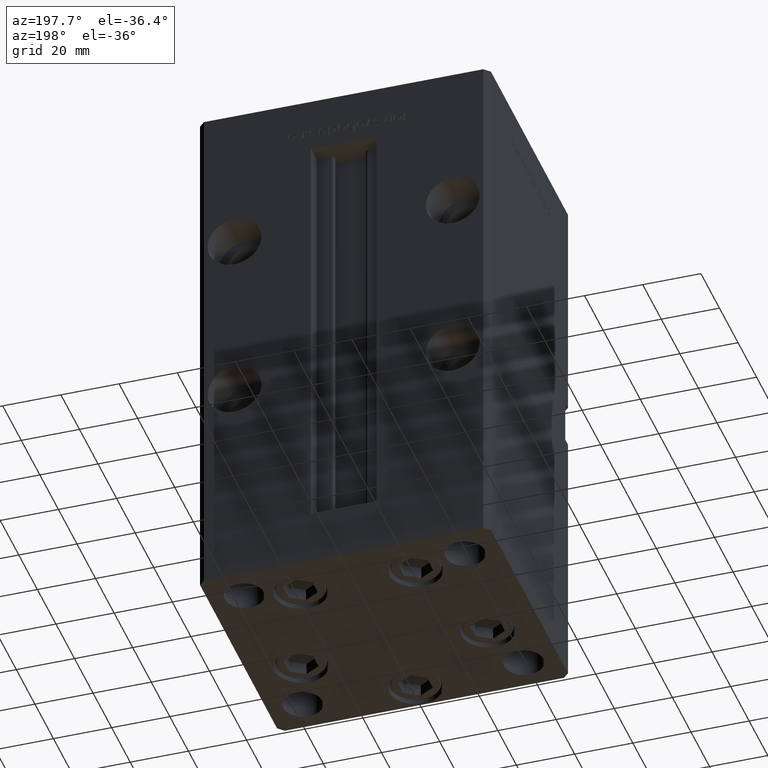
[diagram: clean part render]
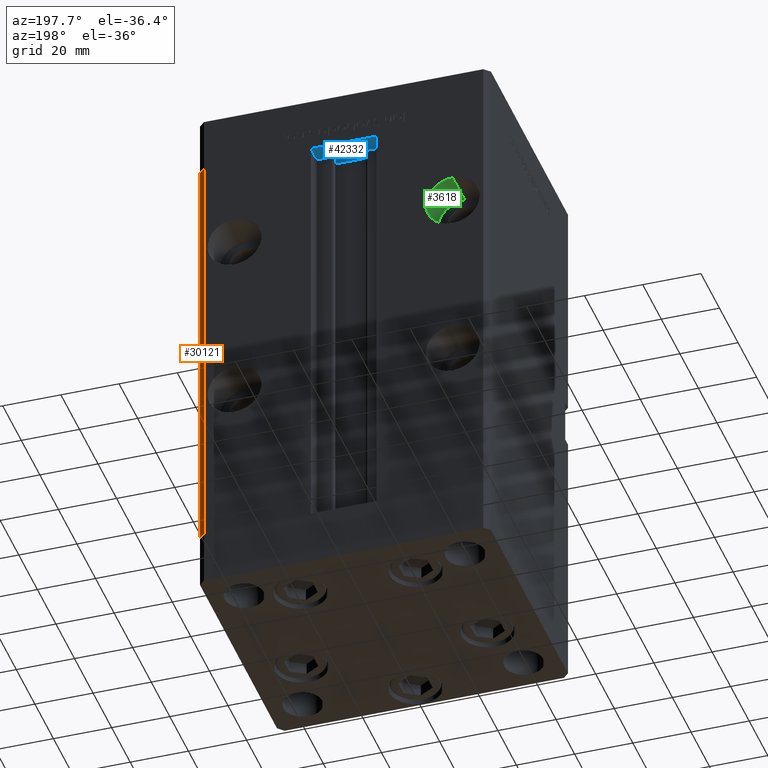
[diagram: same view with three faces highlighted in distinct colors, each labeled with its STEP entity id]
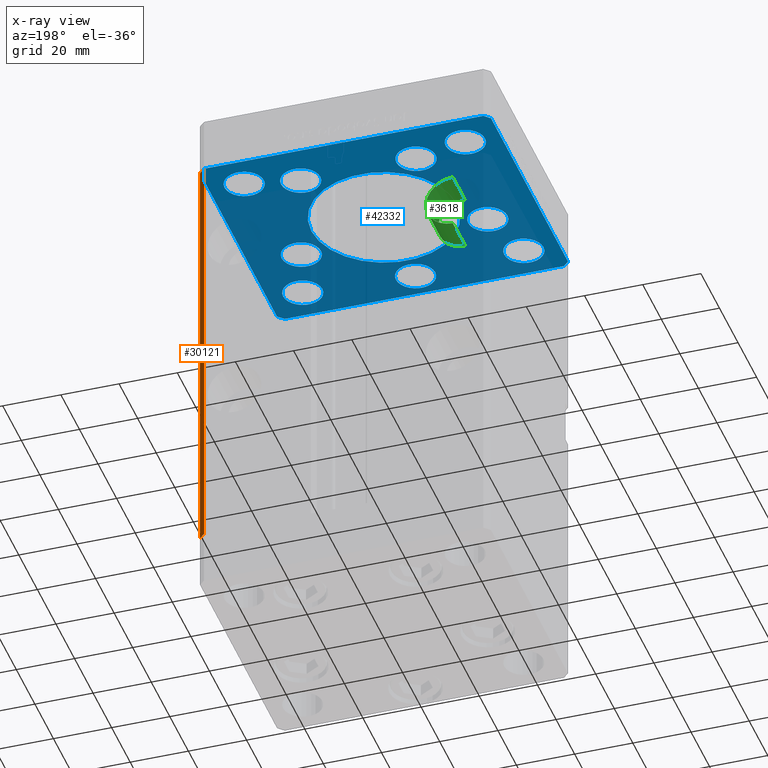
[diagram: x-ray of the same camera — body ghosted, the three highlighted faces saturated]
A machine part, auxiliary view with three faces highlighted in distinct colors.
The next image is the same camera in x-ray (body ghosted, the three faces saturated) — at least one of them is partly hidden behind the body in this view.
Their STEP definitions:

[orange] entity #30121 — the highlighted planar face has unit normal (0.7071, 0.7071, 0).
#4282 = FACE_OUTER_BOUND ( 'NONE', #13705, .T. ) ;
#5411 = ORIENTED_EDGE ( 'NONE', *, *, #23778, .F. ) ;
#5953 = CARTESIAN_POINT ( 'NONE',  ( 50.00000000000001421, 41.49999999999999289, 0.000000000000000000 ) ) ;
#8995 = ORIENTED_EDGE ( 'NONE', *, *, #16210, .T. ) ;
#9285 = VECTOR ( 'NONE', #27767, 1000.000000000000000 ) ;
#10758 = CARTESIAN_POINT ( 'NONE',  ( 48.00000000000000711, 43.50000000000000000, 148.5000000000000000 ) ) ;
#10785 = ORIENTED_EDGE ( 'NONE', *, *, #25831, .T. ) ;
#11395 = LINE ( 'NONE', #18913, #9285 ) ;
#11842 = VECTOR ( 'NONE', #37168, 1000.000000000000000 ) ;
#13705 = EDGE_LOOP ( 'NONE', ( #5411, #19405, #8995, #10785 ) ) ;
#15940 = VERTEX_POINT ( 'NONE', #47399 ) ;
#16210 = EDGE_CURVE ( 'NONE', #15940, #17221, #19061, .T. ) ;
#17221 = VERTEX_POINT ( 'NONE', #23686 ) ;
#18913 = CARTESIAN_POINT ( 'NONE',  ( 48.00000000000000711, 43.50000000000000000, 148.5000000000000000 ) ) ;
#19061 = LINE ( 'NONE', #10758, #28802 ) ;
#19405 = ORIENTED_EDGE ( 'NONE', *, *, #31871, .F. ) ;
#21213 = VECTOR ( 'NONE', #42883, 1000.000000000000000 ) ;
#21236 = AXIS2_PLACEMENT_3D ( 'NONE', #29502, #45899, #32488 ) ;
#21462 = VERTEX_POINT ( 'NONE', #27024 ) ;
#23686 = CARTESIAN_POINT ( 'NONE',  ( 50.00000000000001421, 41.49999999999999289, 148.5000000000000000 ) ) ;
#23778 = EDGE_CURVE ( 'NONE', #21462, #48512, #46908, .T. ) ;
#25831 = EDGE_CURVE ( 'NONE', #17221, #48512, #33925, .T. ) ;
#26856 = DIRECTION ( 'NONE',  ( 0.7071067811865487940, -0.7071067811865463515, 0.000000000000000000 ) ) ;
#27024 = CARTESIAN_POINT ( 'NONE',  ( 48.00000000000000711, 43.50000000000000000, 0.000000000000000000 ) ) ;
#27767 = DIRECTION ( 'NONE',  ( -0.000000000000000000, -0.000000000000000000, -1.000000000000000000 ) ) ;
#28802 = VECTOR ( 'NONE', #26856, 1000.000000000000000 ) ;
#29502 = CARTESIAN_POINT ( 'NONE',  ( 48.00000000000000711, 43.50000000000000000, 148.5000000000000000 ) ) ;
#30121 = ADVANCED_FACE ( 'NONE', ( #4282 ), #45124, .T. ) ;
#31871 = EDGE_CURVE ( 'NONE', #15940, #21462, #11395, .T. ) ;
#32488 = DIRECTION ( 'NONE',  ( -0.7071067811865487940, 0.7071067811865463515, 0.000000000000000000 ) ) ;
#33925 = LINE ( 'NONE', #45760, #11842 ) ;
#37168 = DIRECTION ( 'NONE',  ( -0.000000000000000000, -0.000000000000000000, -1.000000000000000000 ) ) ;
#41782 = CARTESIAN_POINT ( 'NONE',  ( 48.00000000000000711, 43.50000000000000000, 0.000000000000000000 ) ) ;
#42883 = DIRECTION ( 'NONE',  ( 0.7071067811865487940, -0.7071067811865463515, 0.000000000000000000 ) ) ;
#45124 = PLANE ( 'NONE',  #21236 ) ;
#45760 = CARTESIAN_POINT ( 'NONE',  ( 50.00000000000001421, 41.49999999999999289, 148.5000000000000000 ) ) ;
#45899 = DIRECTION ( 'NONE',  ( 0.7071067811865463515, 0.7071067811865487940, -0.000000000000000000 ) ) ;
#46908 = LINE ( 'NONE', #41782, #21213 ) ;
#47399 = CARTESIAN_POINT ( 'NONE',  ( 48.00000000000000711, 43.50000000000000000, 148.5000000000000000 ) ) ;
#48512 = VERTEX_POINT ( 'NONE', #5953 ) ;

[blue] entity #42332 — the highlighted planar face has unit normal (0, 0, 1).
#237 = CARTESIAN_POINT ( 'NONE',  ( -25.30550741379015989, -11.33333333333332860, -19.00000000000000000 ) ) ;
#470 = AXIS2_PLACEMENT_3D ( 'NONE', #50813, #38156, #45689 ) ;
#966 = CARTESIAN_POINT ( 'NONE',  ( -48.00000000000000000, 43.49999999999997158, -19.00000000000000000 ) ) ;
#1085 = VECTOR ( 'NONE', #33731, 1000.000000000000000 ) ;
#1143 = DIRECTION ( 'NONE',  ( 1.000000000000000000, 0.000000000000000000, 0.000000000000000000 ) ) ;
#1145 = AXIS2_PLACEMENT_3D ( 'NONE', #21265, #22876, #18050 ) ;
#1189 = CARTESIAN_POINT ( 'NONE',  ( -26.57068048781375325, 27.62499999999998934, -19.00000000000000000 ) ) ;
#1356 = AXIS2_PLACEMENT_3D ( 'NONE', #24107, #52359, #8265 ) ;
#1708 = EDGE_CURVE ( 'NONE', #38481, #48657, #28504, .T. ) ;
#1733 = FACE_BOUND ( 'NONE', #8278, .T. ) ;
#2112 = ORIENTED_EDGE ( 'NONE', *, *, #43628, .F. ) ;
#2161 = DIRECTION ( 'NONE',  ( 8.360113137237620037E-17, -1.000000000000000000, 0.000000000000000000 ) ) ;
#2181 = VECTOR ( 'NONE', #50321, 1000.000000000000000 ) ;
#2265 = VERTEX_POINT ( 'NONE', #12519 ) ;
#2409 = VERTEX_POINT ( 'NONE', #34195 ) ;
#2690 = VERTEX_POINT ( 'NONE', #45439 ) ;
#2809 = AXIS2_PLACEMENT_3D ( 'NONE', #52515, #32079, #23215 ) ;
#2883 = AXIS2_PLACEMENT_3D ( 'NONE', #7216, #11515, #32426 ) ;
#2944 = AXIS2_PLACEMENT_3D ( 'NONE', #19778, #26773, #40203 ) ;
#2963 = VECTOR ( 'NONE', #11852, 1000.000000000000000 ) ;
#2968 = VERTEX_POINT ( 'NONE', #23906 ) ;
#2972 = DIRECTION ( 'NONE',  ( 1.000000000000000000, 0.000000000000000000, 0.000000000000000000 ) ) ;
#3312 = EDGE_CURVE ( 'NONE', #2690, #2968, #29181, .T. ) ;
#3596 = EDGE_CURVE ( 'NONE', #48657, #38481, #5387, .T. ) ;
#3813 = DIRECTION ( 'NONE',  ( 1.000000000000000000, 0.000000000000000000, 0.000000000000000000 ) ) ;
#3819 = VECTOR ( 'NONE', #2161, 1000.000000000000000 ) ;
#3895 = CIRCLE ( 'NONE', #470, 6.749999999999999112 ) ;
#4853 = ORIENTED_EDGE ( 'NONE', *, *, #18025, .T. ) ;
#4943 = EDGE_CURVE ( 'NONE', #49835, #7608, #32915, .T. ) ;
#5123 = VERTEX_POINT ( 'NONE', #16243 ) ;
#5213 = CARTESIAN_POINT ( 'NONE',  ( 0.000000000000000000, 0.000000000000000000, -19.00000000000000000 ) ) ;
#5387 = CIRCLE ( 'NONE', #42277, 6.749999999999999112 ) ;
#6868 = VERTEX_POINT ( 'NONE', #9015 ) ;
#6897 = VERTEX_POINT ( 'NONE', #50387 ) ;
#6962 = DIRECTION ( 'NONE',  ( 0.000000000000000000, -0.000000000000000000, -1.000000000000000000 ) ) ;
#7001 = VERTEX_POINT ( 'NONE', #16994 ) ;
#7199 = DIRECTION ( 'NONE',  ( 0.7071067811865474617, 0.7071067811865474617, 0.000000000000000000 ) ) ;
#7216 = CARTESIAN_POINT ( 'NONE',  ( 0.000000000000000000, 0.000000000000000000, -19.00000000000000000 ) ) ;
#7506 = EDGE_CURVE ( 'NONE', #5123, #6897, #43739, .T. ) ;
#7608 = VERTEX_POINT ( 'NONE', #20072 ) ;
#7680 = CIRCLE ( 'NONE', #46275, 6.749999999999999112 ) ;
#8012 = DIRECTION ( 'NONE',  ( 1.000000000000000000, 0.000000000000000000, 0.000000000000000000 ) ) ;
#8265 = DIRECTION ( 'NONE',  ( 1.000000000000000000, 0.000000000000000000, 0.000000000000000000 ) ) ;
#8278 = EDGE_LOOP ( 'NONE', ( #44792, #42666 ) ) ;
#8387 = EDGE_CURVE ( 'NONE', #38022, #14256, #13128, .T. ) ;
#8681 = ORIENTED_EDGE ( 'NONE', *, *, #13102, .F. ) ;
#8787 = CARTESIAN_POINT ( 'NONE',  ( -32.05550741379015989, -11.33333333333332860, -19.00000000000000000 ) ) ;
#8876 = DIRECTION ( 'NONE',  ( 0.000000000000000000, 1.000000000000000000, 0.000000000000000000 ) ) ;
#8891 = VERTEX_POINT ( 'NONE', #46302 ) ;
#9015 = CARTESIAN_POINT ( 'NONE',  ( -44.75000000000000000, 31.50000000000000000, -19.00000000000000000 ) ) ;
#9040 = CARTESIAN_POINT ( 'NONE',  ( 6.749999999999999112, -34.00000000000000000, -19.00000000000000000 ) ) ;
#9399 = EDGE_LOOP ( 'NONE', ( #21973, #38959 ) ) ;
#9801 = FACE_BOUND ( 'NONE', #13570, .T. ) ;
#9884 = ORIENTED_EDGE ( 'NONE', *, *, #10661, .F. ) ;
#10037 = ORIENTED_EDGE ( 'NONE', *, *, #7506, .F. ) ;
#10221 = EDGE_CURVE ( 'NONE', #16527, #5123, #52699, .T. ) ;
#10661 = EDGE_CURVE ( 'NONE', #2265, #28944, #39834, .T. ) ;
#11229 = VECTOR ( 'NONE', #8876, 1000.000000000000000 ) ;
#11279 = CARTESIAN_POINT ( 'NONE',  ( -25.00000000000000000, 3.061616997868383043E-15, -19.00000000000000000 ) ) ;
#11298 = CIRCLE ( 'NONE', #43060, 6.749999999999999112 ) ;
#11497 = CARTESIAN_POINT ( 'NONE',  ( 48.00000000000000711, -43.49999999999992184, -19.00000000000000000 ) ) ;
#11508 = EDGE_CURVE ( 'NONE', #2968, #39848, #47294, .T. ) ;
#11515 = DIRECTION ( 'NONE',  ( 0.000000000000000000, -0.000000000000000000, -1.000000000000000000 ) ) ;
#11532 = CARTESIAN_POINT ( 'NONE',  ( -32.05550741379015989, -11.33333333333332860, -19.00000000000000000 ) ) ;
#11631 = ORIENTED_EDGE ( 'NONE', *, *, #4943, .T. ) ;
#11852 = DIRECTION ( 'NONE',  ( 1.000000000000000000, 1.156482317317871331E-15, 0.000000000000000000 ) ) ;
#12519 = CARTESIAN_POINT ( 'NONE',  ( 13.07068048781375147, 27.62499999999998934, -19.00000000000000000 ) ) ;
#13102 = EDGE_CURVE ( 'NONE', #45633, #2690, #42814, .T. ) ;
#13128 = CIRCLE ( 'NONE', #2883, 25.00000000000000000 ) ;
#13479 = CARTESIAN_POINT ( 'NONE',  ( -31.25000000000000000, 31.50000000000000000, -19.00000000000000000 ) ) ;
#13557 = ORIENTED_EDGE ( 'NONE', *, *, #44082, .F. ) ;
#13570 = EDGE_LOOP ( 'NONE', ( #13557, #9884 ) ) ;
#13771 = DIRECTION ( 'NONE',  ( 0.000000000000000000, 0.000000000000000000, 1.000000000000000000 ) ) ;
#14246 = DIRECTION ( 'NONE',  ( 0.000000000000000000, -0.000000000000000000, -1.000000000000000000 ) ) ;
#14256 = VERTEX_POINT ( 'NONE', #50066 ) ;
#14338 = CIRCLE ( 'NONE', #35757, 6.749999999999999112 ) ;
#14510 = EDGE_CURVE ( 'NONE', #18147, #42248, #3895, .T. ) ;
#14512 = CARTESIAN_POINT ( 'NONE',  ( 19.82068048781374969, 27.62499999999998934, -19.00000000000000000 ) ) ;
#14568 = EDGE_CURVE ( 'NONE', #46292, #8891, #21046, .T. ) ;
#14793 = CIRCLE ( 'NONE', #22486, 6.749999999999999112 ) ;
#14824 = AXIS2_PLACEMENT_3D ( 'NONE', #50314, #13771, #1143 ) ;
#15636 = AXIS2_PLACEMENT_3D ( 'NONE', #5213, #17569, #37974 ) ;
#15791 = EDGE_CURVE ( 'NONE', #41956, #7001, #20235, .T. ) ;
#16243 = CARTESIAN_POINT ( 'NONE',  ( 48.00000000000000711, -43.49999999999992184, -19.00000000000000000 ) ) ;
#16527 = VERTEX_POINT ( 'NONE', #26787 ) ;
#16994 = CARTESIAN_POINT ( 'NONE',  ( 44.75000000000000000, 31.50000000000000000, -19.00000000000000000 ) ) ;
#17295 = DIRECTION ( 'NONE',  ( 0.000000000000000000, -0.000000000000000000, -1.000000000000000000 ) ) ;
#17569 = DIRECTION ( 'NONE',  ( -0.000000000000000000, 0.000000000000000000, 1.000000000000000000 ) ) ;
#17997 = CARTESIAN_POINT ( 'NONE',  ( -50.00000000000000711, 41.49999999999999289, -19.00000000000000000 ) ) ;
#18025 = EDGE_CURVE ( 'NONE', #7001, #41956, #14338, .T. ) ;
#18050 = DIRECTION ( 'NONE',  ( -1.000000000000000000, 0.000000000000000000, 0.000000000000000000 ) ) ;
#18113 = FACE_BOUND ( 'NONE', #31927, .T. ) ;
#18147 = VERTEX_POINT ( 'NONE', #41396 ) ;
#18406 = VERTEX_POINT ( 'NONE', #237 ) ;
#19533 = EDGE_CURVE ( 'NONE', #14256, #38022, #52122, .T. ) ;
#19638 = CARTESIAN_POINT ( 'NONE',  ( -48.00000000000000711, -43.50000000000002842, -19.00000000000000000 ) ) ;
#19649 = ORIENTED_EDGE ( 'NONE', *, *, #33715, .F. ) ;
#19668 = CARTESIAN_POINT ( 'NONE',  ( 38.00000000000000000, 31.50000000000000000, -19.00000000000000000 ) ) ;
#19778 = CARTESIAN_POINT ( 'NONE',  ( -38.00000000000000000, 31.50000000000000000, -19.00000000000000000 ) ) ;
#20072 = CARTESIAN_POINT ( 'NONE',  ( -31.25000000000000711, -31.50000000000000711, -19.00000000000000000 ) ) ;
#20235 = CIRCLE ( 'NONE', #1356, 6.749999999999999112 ) ;
#20258 = ORIENTED_EDGE ( 'NONE', *, *, #47531, .T. ) ;
#20382 = DIRECTION ( 'NONE',  ( 1.000000000000000000, 0.000000000000000000, 0.000000000000000000 ) ) ;
#20607 = DIRECTION ( 'NONE',  ( 0.000000000000000000, -0.000000000000000000, -1.000000000000000000 ) ) ;
#20670 = AXIS2_PLACEMENT_3D ( 'NONE', #11532, #6962, #35425 ) ;
#20682 = CARTESIAN_POINT ( 'NONE',  ( 50.00000000000000000, 41.50000000000000711, -19.00000000000000000 ) ) ;
#20962 = CARTESIAN_POINT ( 'NONE',  ( 50.00000000000000000, -41.49999999999992895, -19.00000000000000000 ) ) ;
#21046 = CIRCLE ( 'NONE', #36493, 6.749999999999999112 ) ;
#21198 = ORIENTED_EDGE ( 'NONE', *, *, #27932, .F. ) ;
#21237 = DIRECTION ( 'NONE',  ( 1.000000000000000000, 0.000000000000000000, 0.000000000000000000 ) ) ;
#21265 = CARTESIAN_POINT ( 'NONE',  ( 38.00000000000000711, -31.50000000000000711, -19.00000000000000000 ) ) ;
#21741 = DIRECTION ( 'NONE',  ( 1.000000000000000000, 0.000000000000000000, 0.000000000000000000 ) ) ;
#21912 = EDGE_CURVE ( 'NONE', #18406, #31400, #7680, .T. ) ;
#21970 = ORIENTED_EDGE ( 'NONE', *, *, #52289, .F. ) ;
#21973 = ORIENTED_EDGE ( 'NONE', *, *, #19533, .F. ) ;
#22220 = VECTOR ( 'NONE', #37054, 999.9999999999998863 ) ;
#22448 = EDGE_LOOP ( 'NONE', ( #44748, #50303 ) ) ;
#22486 = AXIS2_PLACEMENT_3D ( 'NONE', #41285, #20607, #49099 ) ;
#22748 = ORIENTED_EDGE ( 'NONE', *, *, #3312, .F. ) ;
#22876 = DIRECTION ( 'NONE',  ( -0.000000000000000000, -0.000000000000000000, -1.000000000000000000 ) ) ;
#22909 = CIRCLE ( 'NONE', #42681, 6.749999999999999112 ) ;
#22972 = LINE ( 'NONE', #35330, #30625 ) ;
#23215 = DIRECTION ( 'NONE',  ( 1.000000000000000000, 0.000000000000000000, 0.000000000000000000 ) ) ;
#23442 = VERTEX_POINT ( 'NONE', #41441 ) ;
#23447 = CARTESIAN_POINT ( 'NONE',  ( 0.000000000000000000, 0.000000000000000000, -19.00000000000000000 ) ) ;
#23903 = ORIENTED_EDGE ( 'NONE', *, *, #24386, .F. ) ;
#23906 = CARTESIAN_POINT ( 'NONE',  ( -50.00000000000000711, 41.49999999999999289, -19.00000000000000000 ) ) ;
#24107 = CARTESIAN_POINT ( 'NONE',  ( 38.00000000000000000, 31.50000000000000000, -19.00000000000000000 ) ) ;
#24386 = EDGE_CURVE ( 'NONE', #8891, #46292, #22909, .T. ) ;
#24632 = DIRECTION ( 'NONE',  ( 0.000000000000000000, -0.000000000000000000, -1.000000000000000000 ) ) ;
#25217 = AXIS2_PLACEMENT_3D ( 'NONE', #14512, #14246, #21741 ) ;
#25901 = CIRCLE ( 'NONE', #14824, 6.749999999999999112 ) ;
#26494 = CARTESIAN_POINT ( 'NONE',  ( 38.00000000000000711, -31.50000000000000711, -19.00000000000000000 ) ) ;
#26773 = DIRECTION ( 'NONE',  ( -0.000000000000000000, -0.000000000000000000, -1.000000000000000000 ) ) ;
#26787 = CARTESIAN_POINT ( 'NONE',  ( -48.00000000000000711, -43.50000000000002842, -19.00000000000000000 ) ) ;
#26882 = CIRCLE ( 'NONE', #1145, 6.749999999999999112 ) ;
#27102 = EDGE_LOOP ( 'NONE', ( #20258, #11631 ) ) ;
#27223 = DIRECTION ( 'NONE',  ( 1.000000000000000000, 0.000000000000000000, 0.000000000000000000 ) ) ;
#27801 = EDGE_LOOP ( 'NONE', ( #4853, #29842 ) ) ;
#27831 = CARTESIAN_POINT ( 'NONE',  ( 47.99999999999999289, 43.50000000000000000, -19.00000000000000000 ) ) ;
#27932 = EDGE_CURVE ( 'NONE', #39848, #16527, #22972, .T. ) ;
#28504 = CIRCLE ( 'NONE', #2809, 6.749999999999999112 ) ;
#28682 = CIRCLE ( 'NONE', #2944, 6.749999999999999112 ) ;
#28809 = EDGE_LOOP ( 'NONE', ( #21198, #32306, #22748, #8681, #32861, #52822, #10037, #50044 ) ) ;
#28944 = VERTEX_POINT ( 'NONE', #46026 ) ;
#29054 = DIRECTION ( 'NONE',  ( 0.000000000000000000, -0.000000000000000000, -1.000000000000000000 ) ) ;
#29181 = LINE ( 'NONE', #966, #1085 ) ;
#29368 = VECTOR ( 'NONE', #7199, 1000.000000000000114 ) ;
#29651 = FACE_BOUND ( 'NONE', #27801, .T. ) ;
#29842 = ORIENTED_EDGE ( 'NONE', *, *, #15791, .T. ) ;
#30474 = FACE_BOUND ( 'NONE', #9399, .T. ) ;
#30477 = DIRECTION ( 'NONE',  ( 1.000000000000000000, 0.000000000000000000, 0.000000000000000000 ) ) ;
#30625 = VECTOR ( 'NONE', #51740, 1000.000000000000000 ) ;
#30851 = AXIS2_PLACEMENT_3D ( 'NONE', #33089, #49500, #50027 ) ;
#31400 = VERTEX_POINT ( 'NONE', #34557 ) ;
#31868 = CARTESIAN_POINT ( 'NONE',  ( 38.80550741379015989, -11.33333333333332860, -19.00000000000000000 ) ) ;
#31927 = EDGE_LOOP ( 'NONE', ( #38013, #32518 ) ) ;
#32079 = DIRECTION ( 'NONE',  ( 0.000000000000000000, -0.000000000000000000, -1.000000000000000000 ) ) ;
#32306 = ORIENTED_EDGE ( 'NONE', *, *, #11508, .F. ) ;
#32426 = DIRECTION ( 'NONE',  ( 1.000000000000000000, 0.000000000000000000, 0.000000000000000000 ) ) ;
#32457 = DIRECTION ( 'NONE',  ( 0.000000000000000000, 0.000000000000000000, 1.000000000000000000 ) ) ;
#32518 = ORIENTED_EDGE ( 'NONE', *, *, #50060, .F. ) ;
#32861 = ORIENTED_EDGE ( 'NONE', *, *, #33197, .F. ) ;
#32915 = CIRCLE ( 'NONE', #33744, 6.749999999999999112 ) ;
#33076 = CARTESIAN_POINT ( 'NONE',  ( 0.000000000000000000, -34.00000000000000000, -19.00000000000000000 ) ) ;
#33089 = CARTESIAN_POINT ( 'NONE',  ( -38.00000000000000000, 31.50000000000000000, -19.00000000000000000 ) ) ;
#33197 = EDGE_CURVE ( 'NONE', #2409, #45633, #52951, .T. ) ;
#33639 = CARTESIAN_POINT ( 'NONE',  ( 47.99999999999999289, 43.50000000000000000, -19.00000000000000000 ) ) ;
#33715 = EDGE_CURVE ( 'NONE', #37406, #6868, #39409, .T. ) ;
#33731 = DIRECTION ( 'NONE',  ( -0.7071067811865536790, -0.7071067811865414665, 0.000000000000000000 ) ) ;
#33744 = AXIS2_PLACEMENT_3D ( 'NONE', #52909, #32457, #20382 ) ;
#33948 = FACE_BOUND ( 'NONE', #43740, .T. ) ;
#34195 = CARTESIAN_POINT ( 'NONE',  ( 50.00000000000000000, 41.50000000000000711, -19.00000000000000000 ) ) ;
#34557 = CARTESIAN_POINT ( 'NONE',  ( -38.80550741379015989, -11.33333333333332860, -19.00000000000000000 ) ) ;
#34776 = FACE_BOUND ( 'NONE', #27102, .T. ) ;
#35276 = DIRECTION ( 'NONE',  ( 0.000000000000000000, -0.000000000000000000, -1.000000000000000000 ) ) ;
#35330 = CARTESIAN_POINT ( 'NONE',  ( -50.00000000000000000, -41.50000000000004263, -19.00000000000000000 ) ) ;
#35425 = DIRECTION ( 'NONE',  ( 1.000000000000000000, 0.000000000000000000, 0.000000000000000000 ) ) ;
#35757 = AXIS2_PLACEMENT_3D ( 'NONE', #19668, #35785, #3813 ) ;
#35785 = DIRECTION ( 'NONE',  ( 0.000000000000000000, 0.000000000000000000, 1.000000000000000000 ) ) ;
#36493 = AXIS2_PLACEMENT_3D ( 'NONE', #37360, #37877, #21237 ) ;
#37031 = AXIS2_PLACEMENT_3D ( 'NONE', #26494, #51500, #43441 ) ;
#37054 = DIRECTION ( 'NONE',  ( -0.7071067811865512365, 0.7071067811865439090, 0.000000000000000000 ) ) ;
#37360 = CARTESIAN_POINT ( 'NONE',  ( 32.05550741379015989, -11.33333333333332860, -19.00000000000000000 ) ) ;
#37406 = VERTEX_POINT ( 'NONE', #13479 ) ;
#37705 = FACE_BOUND ( 'NONE', #22448, .T. ) ;
#37770 = CARTESIAN_POINT ( 'NONE',  ( 31.25000000000000000, 31.50000000000000000, -19.00000000000000000 ) ) ;
#37877 = DIRECTION ( 'NONE',  ( 0.000000000000000000, -0.000000000000000000, -1.000000000000000000 ) ) ;
#37974 = DIRECTION ( 'NONE',  ( 1.000000000000000000, 0.000000000000000000, 0.000000000000000000 ) ) ;
#38013 = ORIENTED_EDGE ( 'NONE', *, *, #45426, .F. ) ;
#38022 = VERTEX_POINT ( 'NONE', #11279 ) ;
#38053 = EDGE_LOOP ( 'NONE', ( #19649, #21970 ) ) ;
#38156 = DIRECTION ( 'NONE',  ( 0.000000000000000000, -0.000000000000000000, -1.000000000000000000 ) ) ;
#38481 = VERTEX_POINT ( 'NONE', #50110 ) ;
#38603 = VERTEX_POINT ( 'NONE', #52715 ) ;
#38656 = EDGE_CURVE ( 'NONE', #6897, #2409, #45940, .T. ) ;
#38694 = CARTESIAN_POINT ( 'NONE',  ( 32.05550741379015989, -11.33333333333332860, -19.00000000000000000 ) ) ;
#38959 = ORIENTED_EDGE ( 'NONE', *, *, #8387, .F. ) ;
#39409 = CIRCLE ( 'NONE', #30851, 6.749999999999999112 ) ;
#39834 = CIRCLE ( 'NONE', #25217, 6.749999999999999112 ) ;
#39848 = VERTEX_POINT ( 'NONE', #43600 ) ;
#40203 = DIRECTION ( 'NONE',  ( -1.000000000000000000, 0.000000000000000000, 0.000000000000000000 ) ) ;
#41151 = EDGE_CURVE ( 'NONE', #42248, #18147, #14793, .T. ) ;
#41285 = CARTESIAN_POINT ( 'NONE',  ( -19.82068048781374969, 27.62499999999998934, -19.00000000000000000 ) ) ;
#41396 = CARTESIAN_POINT ( 'NONE',  ( -13.07068048781375325, 27.62499999999998934, -19.00000000000000000 ) ) ;
#41441 = CARTESIAN_POINT ( 'NONE',  ( 44.75000000000000711, -31.50000000000000711, -19.00000000000000000 ) ) ;
#41878 = ORIENTED_EDGE ( 'NONE', *, *, #21912, .F. ) ;
#41956 = VERTEX_POINT ( 'NONE', #37770 ) ;
#42012 = FACE_BOUND ( 'NONE', #48493, .T. ) ;
#42248 = VERTEX_POINT ( 'NONE', #1189 ) ;
#42277 = AXIS2_PLACEMENT_3D ( 'NONE', #33076, #29054, #45447 ) ;
#42332 = ADVANCED_FACE ( 'NONE', ( #30474, #33948, #37705, #42012, #9801, #1733, #29651, #34776, #46320, #46047, #18113 ), #51180, .F. ) ;
#42645 = CARTESIAN_POINT ( 'NONE',  ( -44.75000000000000711, -31.50000000000000711, -19.00000000000000000 ) ) ;
#42666 = ORIENTED_EDGE ( 'NONE', *, *, #41151, .F. ) ;
#42681 = AXIS2_PLACEMENT_3D ( 'NONE', #38694, #51602, #2972 ) ;
#42814 = LINE ( 'NONE', #33639, #2181 ) ;
#42879 = ORIENTED_EDGE ( 'NONE', *, *, #14568, .F. ) ;
#43060 = AXIS2_PLACEMENT_3D ( 'NONE', #46883, #17295, #30477 ) ;
#43441 = DIRECTION ( 'NONE',  ( -1.000000000000000000, 0.000000000000000000, 0.000000000000000000 ) ) ;
#43600 = CARTESIAN_POINT ( 'NONE',  ( -50.00000000000000000, -41.50000000000004263, -19.00000000000000000 ) ) ;
#43628 = EDGE_CURVE ( 'NONE', #31400, #18406, #50837, .T. ) ;
#43739 = LINE ( 'NONE', #11497, #29368 ) ;
#43740 = EDGE_LOOP ( 'NONE', ( #41878, #2112 ) ) ;
#44082 = EDGE_CURVE ( 'NONE', #28944, #2265, #11298, .T. ) ;
#44748 = ORIENTED_EDGE ( 'NONE', *, *, #3596, .F. ) ;
#44792 = ORIENTED_EDGE ( 'NONE', *, *, #14510, .F. ) ;
#45426 = EDGE_CURVE ( 'NONE', #23442, #38603, #51646, .T. ) ;
#45439 = CARTESIAN_POINT ( 'NONE',  ( -48.00000000000000000, 43.49999999999997158, -19.00000000000000000 ) ) ;
#45447 = DIRECTION ( 'NONE',  ( 1.000000000000000000, 0.000000000000000000, 0.000000000000000000 ) ) ;
#45633 = VERTEX_POINT ( 'NONE', #27831 ) ;
#45689 = DIRECTION ( 'NONE',  ( 1.000000000000000000, 0.000000000000000000, 0.000000000000000000 ) ) ;
#45940 = LINE ( 'NONE', #20962, #11229 ) ;
#46026 = CARTESIAN_POINT ( 'NONE',  ( 26.57068048781374969, 27.62499999999998934, -19.00000000000000000 ) ) ;
#46047 = FACE_BOUND ( 'NONE', #38053, .T. ) ;
#46275 = AXIS2_PLACEMENT_3D ( 'NONE', #8787, #24632, #8012 ) ;
#46292 = VERTEX_POINT ( 'NONE', #31868 ) ;
#46302 = CARTESIAN_POINT ( 'NONE',  ( 25.30550741379015989, -11.33333333333332860, -19.00000000000000000 ) ) ;
#46320 = FACE_OUTER_BOUND ( 'NONE', #28809, .T. ) ;
#46883 = CARTESIAN_POINT ( 'NONE',  ( 19.82068048781374969, 27.62499999999998934, -19.00000000000000000 ) ) ;
#47294 = LINE ( 'NONE', #17997, #3819 ) ;
#47531 = EDGE_CURVE ( 'NONE', #7608, #49835, #25901, .T. ) ;
#48493 = EDGE_LOOP ( 'NONE', ( #42879, #23903 ) ) ;
#48657 = VERTEX_POINT ( 'NONE', #9040 ) ;
#49099 = DIRECTION ( 'NONE',  ( 1.000000000000000000, 0.000000000000000000, 0.000000000000000000 ) ) ;
#49500 = DIRECTION ( 'NONE',  ( -0.000000000000000000, -0.000000000000000000, -1.000000000000000000 ) ) ;
#49835 = VERTEX_POINT ( 'NONE', #42645 ) ;
#50027 = DIRECTION ( 'NONE',  ( -1.000000000000000000, 0.000000000000000000, 0.000000000000000000 ) ) ;
#50044 = ORIENTED_EDGE ( 'NONE', *, *, #10221, .F. ) ;
#50060 = EDGE_CURVE ( 'NONE', #38603, #23442, #26882, .T. ) ;
#50066 = CARTESIAN_POINT ( 'NONE',  ( 25.00000000000000000, 0.000000000000000000, -19.00000000000000000 ) ) ;
#50110 = CARTESIAN_POINT ( 'NONE',  ( -6.749999999999999112, -34.00000000000000000, -19.00000000000000000 ) ) ;
#50303 = ORIENTED_EDGE ( 'NONE', *, *, #1708, .F. ) ;
#50314 = CARTESIAN_POINT ( 'NONE',  ( -38.00000000000000711, -31.50000000000000711, -19.00000000000000000 ) ) ;
#50321 = DIRECTION ( 'NONE',  ( -1.000000000000000000, -2.891205793294678326E-16, 0.000000000000000000 ) ) ;
#50387 = CARTESIAN_POINT ( 'NONE',  ( 50.00000000000000000, -41.49999999999992895, -19.00000000000000000 ) ) ;
#50813 = CARTESIAN_POINT ( 'NONE',  ( -19.82068048781374969, 27.62499999999998934, -19.00000000000000000 ) ) ;
#50837 = CIRCLE ( 'NONE', #20670, 6.749999999999999112 ) ;
#51180 = PLANE ( 'NONE',  #15636 ) ;
#51500 = DIRECTION ( 'NONE',  ( -0.000000000000000000, -0.000000000000000000, -1.000000000000000000 ) ) ;
#51602 = DIRECTION ( 'NONE',  ( 0.000000000000000000, -0.000000000000000000, -1.000000000000000000 ) ) ;
#51646 = CIRCLE ( 'NONE', #37031, 6.749999999999999112 ) ;
#51740 = DIRECTION ( 'NONE',  ( 0.7071067811865487940, -0.7071067811865463515, 0.000000000000000000 ) ) ;
#52122 = CIRCLE ( 'NONE', #52994, 25.00000000000000000 ) ;
#52289 = EDGE_CURVE ( 'NONE', #6868, #37406, #28682, .T. ) ;
#52359 = DIRECTION ( 'NONE',  ( 0.000000000000000000, 0.000000000000000000, 1.000000000000000000 ) ) ;
#52515 = CARTESIAN_POINT ( 'NONE',  ( 0.000000000000000000, -34.00000000000000000, -19.00000000000000000 ) ) ;
#52699 = LINE ( 'NONE', #19638, #2963 ) ;
#52715 = CARTESIAN_POINT ( 'NONE',  ( 31.25000000000000711, -31.50000000000000711, -19.00000000000000000 ) ) ;
#52822 = ORIENTED_EDGE ( 'NONE', *, *, #38656, .F. ) ;
#52909 = CARTESIAN_POINT ( 'NONE',  ( -38.00000000000000711, -31.50000000000000711, -19.00000000000000000 ) ) ;
#52951 = LINE ( 'NONE', #20682, #22220 ) ;
#52994 = AXIS2_PLACEMENT_3D ( 'NONE', #23447, #35276, #27223 ) ;

[green] entity #3618 — the highlighted cylindrical surface (edge-blend (fillet) strip) has radius 9.25 mm, axis along (0, 1, 0).
#698 = DIRECTION ( 'NONE',  ( 0.000000000000000000, 0.000000000000000000, -1.000000000000000000 ) ) ;
#841 = DIRECTION ( 'NONE',  ( -0.000000000000000000, 1.000000000000000000, -0.000000000000000000 ) ) ;
#2966 = CARTESIAN_POINT ( 'NONE',  ( -37.50000000000000000, 43.50000000000000000, 107.2499999999999858 ) ) ;
#3618 = ADVANCED_FACE ( 'NONE', ( #37630 ), #9715, .F. ) ;
#5572 = VERTEX_POINT ( 'NONE', #15837 ) ;
#6687 = CARTESIAN_POINT ( 'NONE',  ( -37.50000000000000000, 43.50000000000000000, 116.4999999999999858 ) ) ;
#7272 = DIRECTION ( 'NONE',  ( 0.000000000000000000, 0.000000000000000000, -1.000000000000000000 ) ) ;
#7377 = EDGE_CURVE ( 'NONE', #40256, #26307, #13377, .T. ) ;
#9021 = AXIS2_PLACEMENT_3D ( 'NONE', #19879, #11295, #7272 ) ;
#9715 = CYLINDRICAL_SURFACE ( 'NONE', #14034, 9.250000000000008882 ) ;
#11295 = DIRECTION ( 'NONE',  ( 0.000000000000000000, 1.000000000000000000, -0.000000000000000000 ) ) ;
#12023 = AXIS2_PLACEMENT_3D ( 'NONE', #6687, #45566, #698 ) ;
#12859 = CIRCLE ( 'NONE', #12023, 9.250000000000008882 ) ;
#13377 = LINE ( 'NONE', #25705, #44032 ) ;
#13457 = EDGE_CURVE ( 'NONE', #5572, #40256, #43340, .T. ) ;
#14034 = AXIS2_PLACEMENT_3D ( 'NONE', #42771, #841, #18308 ) ;
#14790 = ORIENTED_EDGE ( 'NONE', *, *, #7377, .F. ) ;
#15169 = ORIENTED_EDGE ( 'NONE', *, *, #15193, .T. ) ;
#15193 = EDGE_CURVE ( 'NONE', #5572, #43962, #48177, .T. ) ;
#15837 = CARTESIAN_POINT ( 'NONE',  ( -37.50000000000000000, 30.50000000000000000, 125.7500000000000000 ) ) ;
#18308 = DIRECTION ( 'NONE',  ( 0.000000000000000000, 0.000000000000000000, 1.000000000000000000 ) ) ;
#19682 = CARTESIAN_POINT ( 'NONE',  ( -37.50000000000000000, 30.50000000000000000, 125.7500000000000000 ) ) ;
#19879 = CARTESIAN_POINT ( 'NONE',  ( -37.50000000000000000, 30.50000000000000000, 116.4999999999999858 ) ) ;
#21038 = ORIENTED_EDGE ( 'NONE', *, *, #35740, .T. ) ;
#24982 = ORIENTED_EDGE ( 'NONE', *, *, #13457, .F. ) ;
#25705 = CARTESIAN_POINT ( 'NONE',  ( -37.50000000000000000, 30.50000000000000000, 107.2499999999999858 ) ) ;
#26307 = VERTEX_POINT ( 'NONE', #2966 ) ;
#29676 = VECTOR ( 'NONE', #36064, 1000.000000000000000 ) ;
#31109 = CARTESIAN_POINT ( 'NONE',  ( -37.50000000000000000, 30.50000000000000000, 107.2499999999999858 ) ) ;
#34596 = DIRECTION ( 'NONE',  ( -0.000000000000000000, 1.000000000000000000, -0.000000000000000000 ) ) ;
#35740 = EDGE_CURVE ( 'NONE', #43962, #26307, #12859, .T. ) ;
#36064 = DIRECTION ( 'NONE',  ( -0.000000000000000000, 1.000000000000000000, -0.000000000000000000 ) ) ;
#37630 = FACE_OUTER_BOUND ( 'NONE', #43638, .T. ) ;
#40256 = VERTEX_POINT ( 'NONE', #31109 ) ;
#42771 = CARTESIAN_POINT ( 'NONE',  ( -37.50000000000000000, 30.50000000000000000, 116.4999999999999858 ) ) ;
#43340 = CIRCLE ( 'NONE', #9021, 9.250000000000008882 ) ;
#43638 = EDGE_LOOP ( 'NONE', ( #14790, #24982, #15169, #21038 ) ) ;
#43962 = VERTEX_POINT ( 'NONE', #49048 ) ;
#44032 = VECTOR ( 'NONE', #34596, 1000.000000000000000 ) ;
#45566 = DIRECTION ( 'NONE',  ( 0.000000000000000000, 1.000000000000000000, -0.000000000000000000 ) ) ;
#48177 = LINE ( 'NONE', #19682, #29676 ) ;
#49048 = CARTESIAN_POINT ( 'NONE',  ( -37.50000000000000000, 43.50000000000000000, 125.7500000000000000 ) ) ;